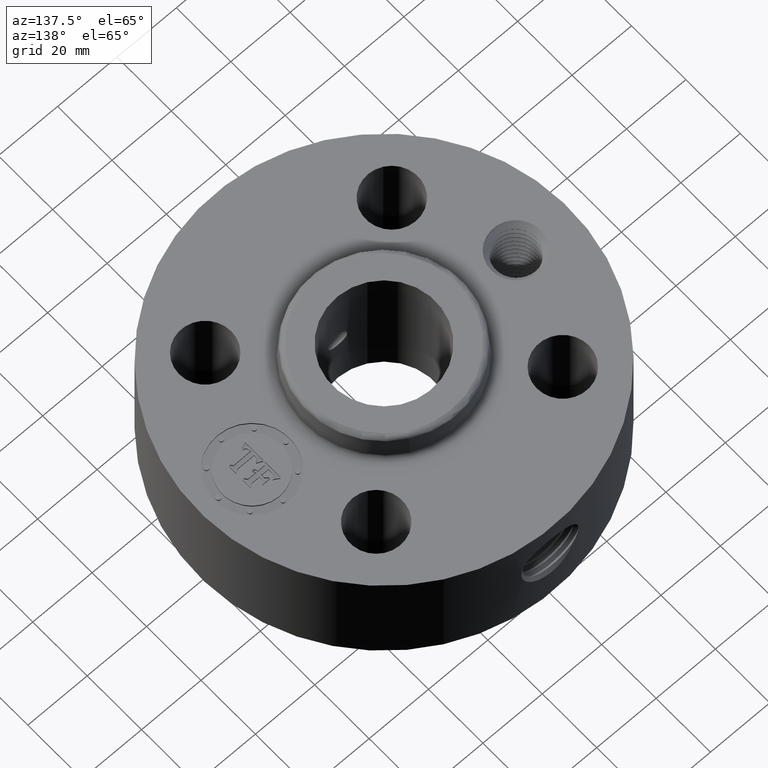
[diagram: clean part render]
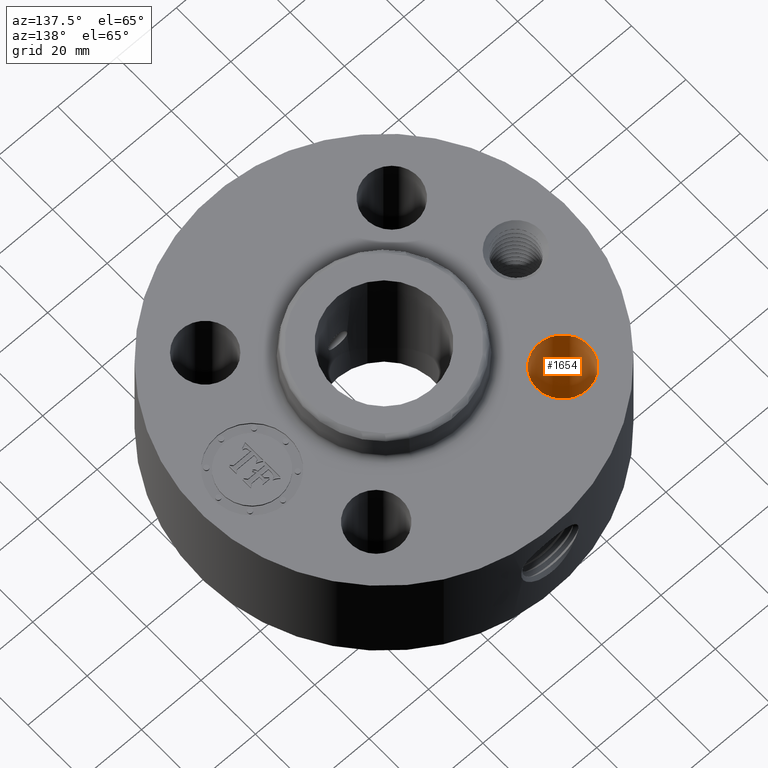
[diagram: same view with one face highlighted and labeled with its STEP entity id]
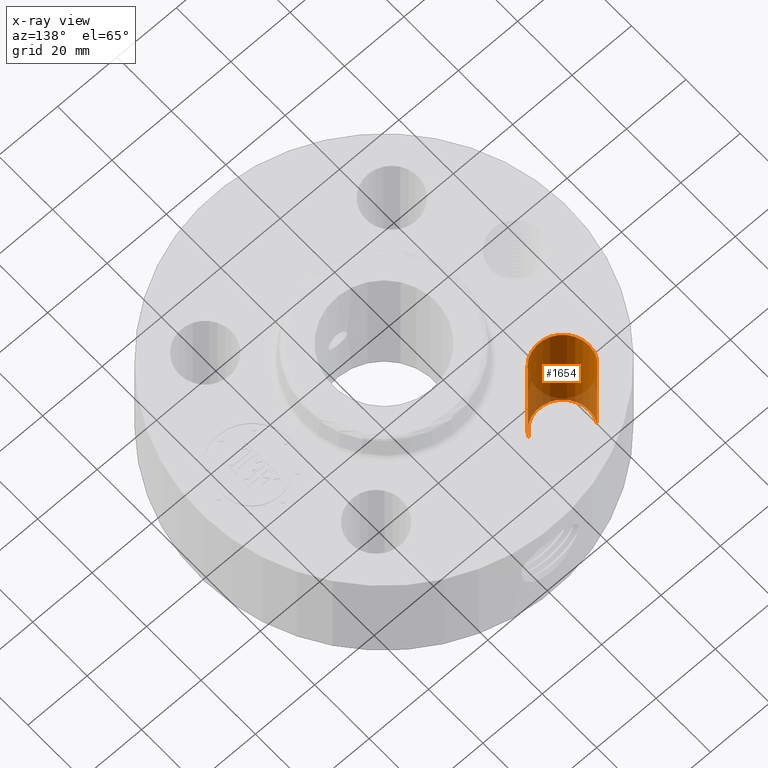
[diagram: x-ray of the same camera — body ghosted, the highlighted face saturated]
A machine part, auxiliary view. The second image highlights one B-rep face of the part: STEP entity #1654.
The next image is the same camera in x-ray: the body ghosted, the highlighted face saturated — about 21% of this face is hidden behind the body in this view.
In plain terms, the highlighted cylindrical surface (edge-blend (fillet) strip) has radius 8.763 mm, axis along (-0, 0, -1).
Its self-contained STEP definition (entity closure, byte-faithful):
#678=AXIS2_PLACEMENT_3D('Circle Axis2P3D',#676,#677,$) ;
#1627=AXIS2_PLACEMENT_3D('Cylinder Axis2P3D',#1624,#1625,#1626) ;
#1645=AXIS2_PLACEMENT_3D('Circle Axis2P3D',#1643,#1644,$) ;
#676=CARTESIAN_POINT('Axis2P3D Location',(-1.23743686708,1.23743686708,0.0600000000002)) ;
#680=CARTESIAN_POINT('Vertex',(-0.934670883228,1.07203505626,0.0600000000002)) ;
#682=CARTESIAN_POINT('Vertex',(-1.54020285093,1.4028386779,0.0600000000002)) ;
#1624=CARTESIAN_POINT('Axis2P3D Location',(-1.23743686708,1.23743686708,1.55606299213)) ;
#1629=CARTESIAN_POINT('Line Origine',(-0.934670883228,1.07203505626,0.810000000003)) ;
#1633=CARTESIAN_POINT('Vertex',(-0.934670883228,1.07203505626,1.56000000001)) ;
#1636=CARTESIAN_POINT('Line Origine',(-1.54020285093,1.4028386779,0.810000000003)) ;
#1640=CARTESIAN_POINT('Vertex',(-1.54020285093,1.4028386779,1.56000000001)) ;
#1643=CARTESIAN_POINT('Axis2P3D Location',(-1.23743686708,1.23743686708,1.56000000001)) ;
#677=DIRECTION('Axis2P3D Direction',(0.,0.,-0.0393700787402)) ;
#1625=DIRECTION('Axis2P3D Direction',(-0.,0.,-0.0393700787402)) ;
#1626=DIRECTION('Axis2P3D XDirection',(-0.0345504945626,0.0188750212049,0.)) ;
#1630=DIRECTION('Vector Direction',(0.,0.,-0.0393700787402)) ;
#1637=DIRECTION('Vector Direction',(0.,0.,-0.0393700787402)) ;
#1644=DIRECTION('Axis2P3D Direction',(-0.,0.,-0.0393700787402)) ;
#1631=VECTOR('Line Direction',#1630,0.0393700787402) ;
#1638=VECTOR('Line Direction',#1637,0.0393700787402) ;
#1649=ORIENTED_EDGE('',*,*,#1635,.F.) ;
#1650=ORIENTED_EDGE('',*,*,#684,.T.) ;
#1651=ORIENTED_EDGE('',*,*,#1642,.T.) ;
#1652=ORIENTED_EDGE('',*,*,#1647,.F.) ;
#1654=ADVANCED_FACE('PartBody',(#1653),#1628,.F.) ;
#679=CIRCLE('generated circle',#678,0.345000000001) ;
#1646=CIRCLE('generated circle',#1645,0.345000000001) ;
#1628=CYLINDRICAL_SURFACE('generated cylinder',#1627,0.345000000001) ;
#684=EDGE_CURVE('',#681,#683,#679,.T.) ;
#1635=EDGE_CURVE('',#681,#1634,#1632,.F.) ;
#1642=EDGE_CURVE('',#683,#1641,#1639,.F.) ;
#1647=EDGE_CURVE('',#1634,#1641,#1646,.T.) ;
#1648=EDGE_LOOP('',(#1649,#1650,#1651,#1652)) ;
#1653=FACE_OUTER_BOUND('',#1648,.T.) ;
#1632=LINE('Line',#1629,#1631) ;
#1639=LINE('Line',#1636,#1638) ;
#681=VERTEX_POINT('',#680) ;
#683=VERTEX_POINT('',#682) ;
#1634=VERTEX_POINT('',#1633) ;
#1641=VERTEX_POINT('',#1640) ;